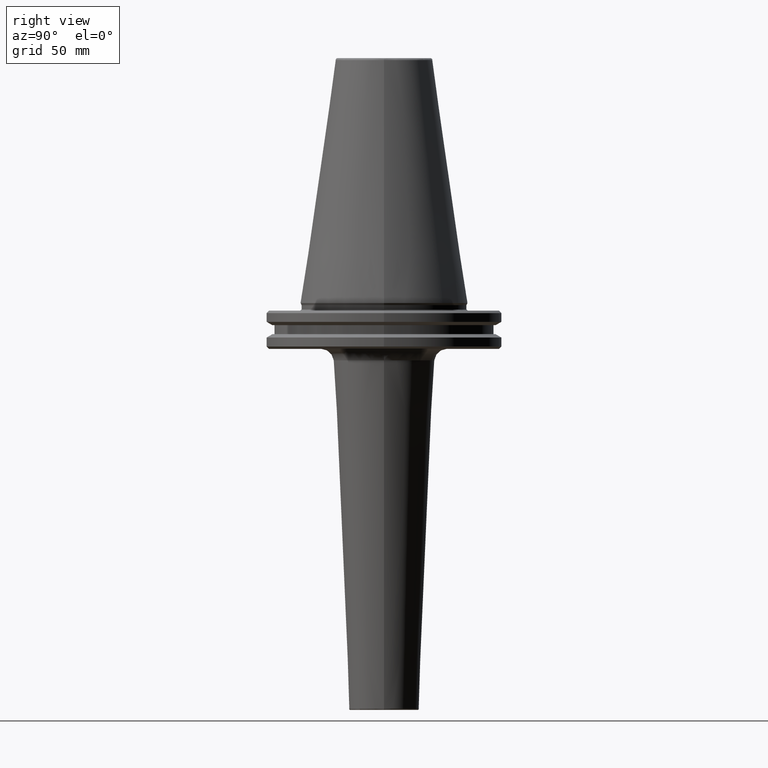
[diagram: clean part render]
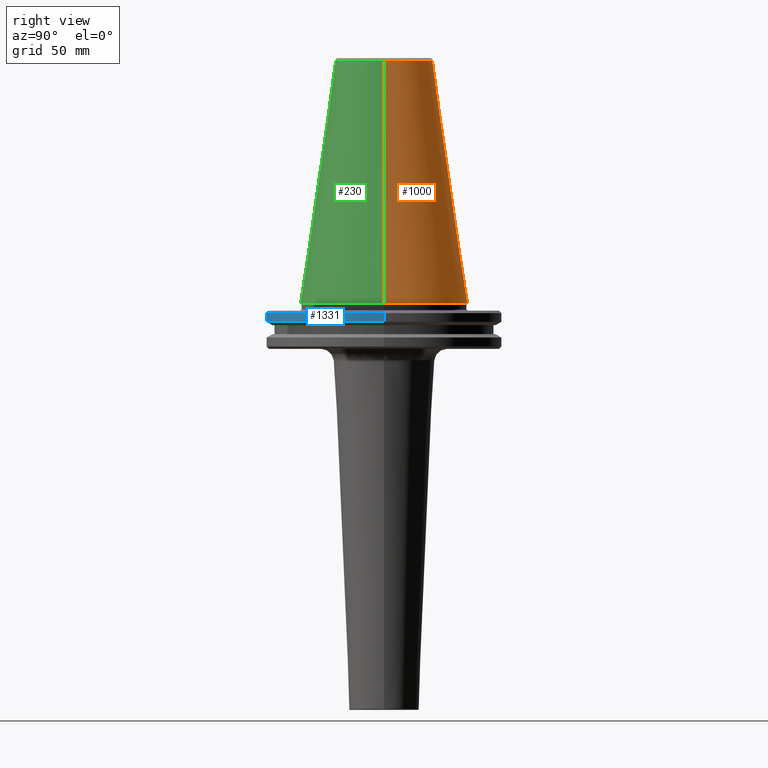
[diagram: same view with three faces highlighted in distinct colors, each labeled with its STEP entity id]
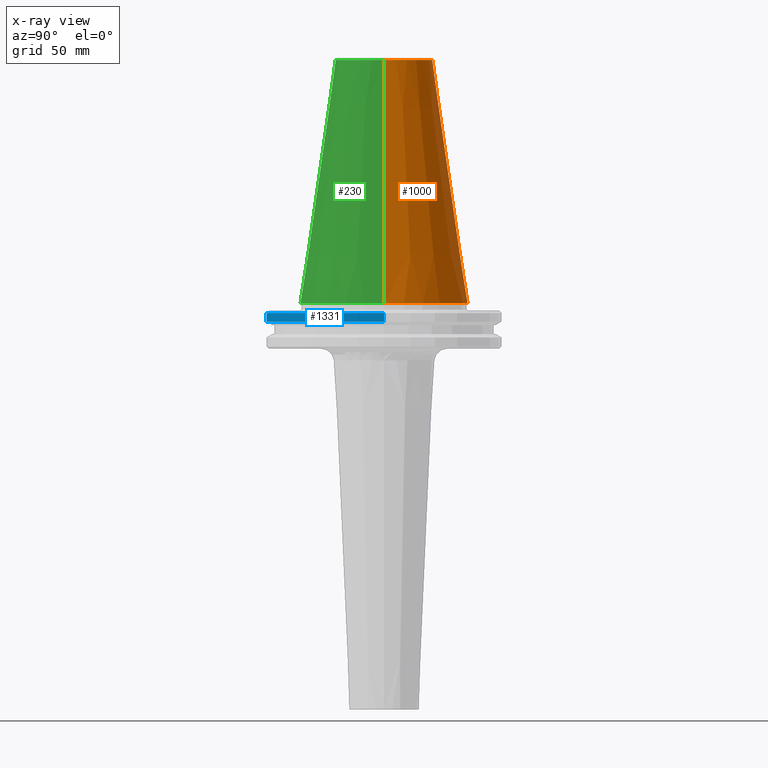
[diagram: x-ray of the same camera — body ghosted, the three highlighted faces saturated]
A machine part, right view with three faces highlighted in distinct colors.
The next image is the same camera in x-ray (body ghosted, the three faces saturated) — at least one of them is partly hidden behind the body in this view.
Their STEP definitions:

[orange] entity #1000 — the highlighted conical surface has half-angle 8.297 deg.
#4 = ORIENTED_EDGE ( 'NONE', *, *, #661, .T. ) ;
#29 = CARTESIAN_POINT ( 'NONE',  ( 20.21110778703758000, 3.376112895941951000E-015, 100.8943082272673000 ) ) ;
#94 = VERTEX_POINT ( 'NONE', #367 ) ;
#124 = CARTESIAN_POINT ( 'NONE',  ( -34.92500000000000400, 4.277078946022131700E-015, 0.0000000000000000000 ) ) ;
#266 = VERTEX_POINT ( 'NONE', #124 ) ;
#367 = CARTESIAN_POINT ( 'NONE',  ( 34.92500000000000400, 0.0000000000000000000, 0.0000000000000000000 ) ) ;
#403 = DIRECTION ( 'NONE',  ( -0.0000000000000000000, -0.0000000000000000000, 1.000000000000000000 ) ) ;
#409 = CARTESIAN_POINT ( 'NONE',  ( 0.0000000000000000000, 0.0000000000000000000, 0.0000000000000000000 ) ) ;
#420 = CARTESIAN_POINT ( 'NONE',  ( -34.92499999999999700, 0.0000000000000000000, -1.387778780781445700E-014 ) ) ;
#427 = DIRECTION ( 'NONE',  ( -0.1443082272673069400, 0.0000000000000000000, -0.9895327864921743500 ) ) ;
#449 = DIRECTION ( 'NONE',  ( 0.1443082272673069400, 1.767266086135362400E-017, -0.9895327864921743500 ) ) ;
#454 = CARTESIAN_POINT ( 'NONE',  ( 34.92499999999999700, 4.277078946022130900E-015, -1.387778780781445700E-014 ) ) ;
#456 = DIRECTION ( 'NONE',  ( -1.000000000000000000, 0.0000000000000000000, 0.0000000000000000000 ) ) ;
#463 = DIRECTION ( 'NONE',  ( 0.0000000000000000000, 0.0000000000000000000, -1.000000000000000000 ) ) ;
#471 = CARTESIAN_POINT ( 'NONE',  ( 0.0000000000000000000, 0.0000000000000000000, 100.8943082272673000 ) ) ;
#477 = DIRECTION ( 'NONE',  ( -1.000000000000000000, 0.0000000000000000000, 0.0000000000000000000 ) ) ;
#497 = EDGE_LOOP ( 'NONE', ( #4, #630, #649, #706 ) ) ;
#630 = ORIENTED_EDGE ( 'NONE', *, *, #686, .T. ) ;
#649 = ORIENTED_EDGE ( 'NONE', *, *, #695, .T. ) ;
#661 = EDGE_CURVE ( 'NONE', #1091, #1342, #1266, .T. ) ;
#686 = EDGE_CURVE ( 'NONE', #1342, #94, #1245, .T. ) ;
#695 = EDGE_CURVE ( 'NONE', #94, #266, #1242, .T. ) ;
#705 = EDGE_CURVE ( 'NONE', #1091, #266, #1247, .T. ) ;
#706 = ORIENTED_EDGE ( 'NONE', *, *, #705, .F. ) ;
#714 = AXIS2_PLACEMENT_3D ( 'NONE', #1362, #1398, #1315 ) ;
#956 = CARTESIAN_POINT ( 'NONE',  ( -20.21110778703758000, 0.0000000000000000000, 100.8943082272673000 ) ) ;
#983 = CONICAL_SURFACE ( 'NONE', #714, 34.92499999999999700, 0.1448138465474189400 ) ;
#1000 = ADVANCED_FACE ( 'NONE', ( #1022 ), #983, .T. ) ;
#1022 = FACE_OUTER_BOUND ( 'NONE', #497, .T. ) ;
#1091 = VERTEX_POINT ( 'NONE', #956 ) ;
#1228 = VECTOR ( 'NONE', #427, 1000.000000000000000 ) ;
#1232 = VECTOR ( 'NONE', #449, 1000.000000000000000 ) ;
#1238 = AXIS2_PLACEMENT_3D ( 'NONE', #409, #403, #477 ) ;
#1242 = CIRCLE ( 'NONE', #1238, 34.92499999999999700 ) ;
#1245 = LINE ( 'NONE', #454, #1232 ) ;
#1247 = LINE ( 'NONE', #420, #1228 ) ;
#1266 = CIRCLE ( 'NONE', #1474, 20.21110778703758000 ) ;
#1315 = DIRECTION ( 'NONE',  ( -1.000000000000000000, 0.0000000000000000000, 0.0000000000000000000 ) ) ;
#1342 = VERTEX_POINT ( 'NONE', #29 ) ;
#1362 = CARTESIAN_POINT ( 'NONE',  ( 0.0000000000000000000, 0.0000000000000000000, -1.387778780781445700E-014 ) ) ;
#1398 = DIRECTION ( 'NONE',  ( 0.0000000000000000000, 0.0000000000000000000, -1.000000000000000000 ) ) ;
#1474 = AXIS2_PLACEMENT_3D ( 'NONE', #471, #463, #456 ) ;

[blue] entity #1331 — the highlighted cylindrical surface (partial cylindrical patch) has radius 48.75 mm, axis along (0, 0, 1).
#21 = AXIS2_PLACEMENT_3D ( 'NONE', #151, #140, #139 ) ;
#56 = CARTESIAN_POINT ( 'NONE',  ( -48.74999999999989300, 0.0000000000000000000, -4.199999999999870500 ) ) ;
#60 = DIRECTION ( 'NONE',  ( 0.0000000000000000000, 0.0000000000000000000, 1.000000000000000000 ) ) ;
#64 = CARTESIAN_POINT ( 'NONE',  ( 0.0000000000000000000, 0.0000000000000000000, 113.5216080541959500 ) ) ;
#96 = DIRECTION ( 'NONE',  ( 1.000000000000000000, 0.0000000000000000000, 0.0000000000000000000 ) ) ;
#123 = DIRECTION ( 'NONE',  ( 1.000000000000000000, 0.0000000000000000000, 0.0000000000000000000 ) ) ;
#128 = DIRECTION ( 'NONE',  ( 0.0000000000000000000, 0.0000000000000000000, 1.000000000000000000 ) ) ;
#131 = CARTESIAN_POINT ( 'NONE',  ( 0.0000000000000000000, 0.0000000000000000000, -7.852404735808352000 ) ) ;
#139 = DIRECTION ( 'NONE',  ( -1.000000000000000000, 0.0000000000000000000, 0.0000000000000000000 ) ) ;
#140 = DIRECTION ( 'NONE',  ( -0.0000000000000000000, -0.0000000000000000000, -1.000000000000000000 ) ) ;
#151 = CARTESIAN_POINT ( 'NONE',  ( 0.0000000000000000000, 0.0000000000000000000, -4.199999999999870500 ) ) ;
#191 = VERTEX_POINT ( 'NONE', #635 ) ;
#202 = AXIS2_PLACEMENT_3D ( 'NONE', #131, #128, #123 ) ;
#224 = AXIS2_PLACEMENT_3D ( 'NONE', #64, #60, #96 ) ;
#421 = ORIENTED_EDGE ( 'NONE', *, *, #1079, .F. ) ;
#462 = ORIENTED_EDGE ( 'NONE', *, *, #1150, .T. ) ;
#480 = EDGE_LOOP ( 'NONE', ( #421, #523, #1114, #462 ) ) ;
#523 = ORIENTED_EDGE ( 'NONE', *, *, #929, .T. ) ;
#557 = DIRECTION ( 'NONE',  ( 0.0000000000000000000, 0.0000000000000000000, 1.000000000000000000 ) ) ;
#558 = LINE ( 'NONE', #1001, #920 ) ;
#582 = EDGE_CURVE ( 'NONE', #1363, #191, #1380, .T. ) ;
#635 = CARTESIAN_POINT ( 'NONE',  ( 48.74999999999989300, 5.970153145843333000E-015, -4.199999999999870500 ) ) ;
#660 = CARTESIAN_POINT ( 'NONE',  ( -48.75000000000000000, 5.970153145843347100E-015, -7.852404735808352000 ) ) ;
#735 = CYLINDRICAL_SURFACE ( 'NONE', #224, 48.75000000000000000 ) ;
#775 = FACE_OUTER_BOUND ( 'NONE', #480, .T. ) ;
#875 = VERTEX_POINT ( 'NONE', #660 ) ;
#885 = CIRCLE ( 'NONE', #21, 48.75000000000018500 ) ;
#920 = VECTOR ( 'NONE', #1031, 1000.000000000000000 ) ;
#929 = EDGE_CURVE ( 'NONE', #875, #1363, #1064, .T. ) ;
#1001 = CARTESIAN_POINT ( 'NONE',  ( -48.75000000000000000, 5.970153145843347100E-015, 113.5216080541959500 ) ) ;
#1031 = DIRECTION ( 'NONE',  ( 0.0000000000000000000, 0.0000000000000000000, 1.000000000000000000 ) ) ;
#1064 = CIRCLE ( 'NONE', #202, 48.75000000000000000 ) ;
#1079 = EDGE_CURVE ( 'NONE', #875, #1504, #558, .T. ) ;
#1111 = CARTESIAN_POINT ( 'NONE',  ( 48.75000000000000000, 0.0000000000000000000, -7.852404735808352000 ) ) ;
#1114 = ORIENTED_EDGE ( 'NONE', *, *, #582, .T. ) ;
#1150 = EDGE_CURVE ( 'NONE', #191, #1504, #885, .T. ) ;
#1157 = CARTESIAN_POINT ( 'NONE',  ( 48.75000000000000000, 0.0000000000000000000, 113.5216080541959500 ) ) ;
#1314 = VECTOR ( 'NONE', #557, 1000.000000000000000 ) ;
#1331 = ADVANCED_FACE ( 'NONE', ( #775 ), #735, .T. ) ;
#1363 = VERTEX_POINT ( 'NONE', #1111 ) ;
#1380 = LINE ( 'NONE', #1157, #1314 ) ;
#1504 = VERTEX_POINT ( 'NONE', #56 ) ;

[green] entity #230 — the highlighted conical surface has half-angle 8.297 deg.
#29 = CARTESIAN_POINT ( 'NONE',  ( 20.21110778703758000, 3.376112895941951000E-015, 100.8943082272673000 ) ) ;
#34 = DIRECTION ( 'NONE',  ( -1.000000000000000000, 0.0000000000000000000, 0.0000000000000000000 ) ) ;
#81 = EDGE_LOOP ( 'NONE', ( #1440, #691, #897, #1414 ) ) ;
#94 = VERTEX_POINT ( 'NONE', #367 ) ;
#124 = CARTESIAN_POINT ( 'NONE',  ( -34.92500000000000400, 4.277078946022131700E-015, 0.0000000000000000000 ) ) ;
#176 = AXIS2_PLACEMENT_3D ( 'NONE', #1427, #1425, #1422 ) ;
#200 = DIRECTION ( 'NONE',  ( 0.0000000000000000000, 0.0000000000000000000, -1.000000000000000000 ) ) ;
#230 = ADVANCED_FACE ( 'NONE', ( #1507 ), #1482, .T. ) ;
#244 = CARTESIAN_POINT ( 'NONE',  ( 0.0000000000000000000, 0.0000000000000000000, -1.387778780781445700E-014 ) ) ;
#265 = AXIS2_PLACEMENT_3D ( 'NONE', #244, #200, #34 ) ;
#266 = VERTEX_POINT ( 'NONE', #124 ) ;
#367 = CARTESIAN_POINT ( 'NONE',  ( 34.92500000000000400, 0.0000000000000000000, 0.0000000000000000000 ) ) ;
#420 = CARTESIAN_POINT ( 'NONE',  ( -34.92499999999999700, 0.0000000000000000000, -1.387778780781445700E-014 ) ) ;
#427 = DIRECTION ( 'NONE',  ( -0.1443082272673069400, 0.0000000000000000000, -0.9895327864921743500 ) ) ;
#438 = EDGE_CURVE ( 'NONE', #1342, #1091, #1478, .T. ) ;
#449 = DIRECTION ( 'NONE',  ( 0.1443082272673069400, 1.767266086135362400E-017, -0.9895327864921743500 ) ) ;
#454 = CARTESIAN_POINT ( 'NONE',  ( 34.92499999999999700, 4.277078946022130900E-015, -1.387778780781445700E-014 ) ) ;
#686 = EDGE_CURVE ( 'NONE', #1342, #94, #1245, .T. ) ;
#691 = ORIENTED_EDGE ( 'NONE', *, *, #438, .T. ) ;
#705 = EDGE_CURVE ( 'NONE', #1091, #266, #1247, .T. ) ;
#799 = EDGE_CURVE ( 'NONE', #266, #94, #1171, .T. ) ;
#854 = DIRECTION ( 'NONE',  ( -1.000000000000000000, 0.0000000000000000000, 0.0000000000000000000 ) ) ;
#861 = DIRECTION ( 'NONE',  ( -0.0000000000000000000, -0.0000000000000000000, 1.000000000000000000 ) ) ;
#867 = CARTESIAN_POINT ( 'NONE',  ( 0.0000000000000000000, 0.0000000000000000000, 0.0000000000000000000 ) ) ;
#897 = ORIENTED_EDGE ( 'NONE', *, *, #705, .T. ) ;
#956 = CARTESIAN_POINT ( 'NONE',  ( -20.21110778703758000, 0.0000000000000000000, 100.8943082272673000 ) ) ;
#986 = AXIS2_PLACEMENT_3D ( 'NONE', #867, #861, #854 ) ;
#1091 = VERTEX_POINT ( 'NONE', #956 ) ;
#1171 = CIRCLE ( 'NONE', #986, 34.92499999999999700 ) ;
#1228 = VECTOR ( 'NONE', #427, 1000.000000000000000 ) ;
#1232 = VECTOR ( 'NONE', #449, 1000.000000000000000 ) ;
#1245 = LINE ( 'NONE', #454, #1232 ) ;
#1247 = LINE ( 'NONE', #420, #1228 ) ;
#1342 = VERTEX_POINT ( 'NONE', #29 ) ;
#1414 = ORIENTED_EDGE ( 'NONE', *, *, #799, .T. ) ;
#1422 = DIRECTION ( 'NONE',  ( -1.000000000000000000, 0.0000000000000000000, 0.0000000000000000000 ) ) ;
#1425 = DIRECTION ( 'NONE',  ( 0.0000000000000000000, 0.0000000000000000000, -1.000000000000000000 ) ) ;
#1427 = CARTESIAN_POINT ( 'NONE',  ( 0.0000000000000000000, 0.0000000000000000000, 100.8943082272673000 ) ) ;
#1440 = ORIENTED_EDGE ( 'NONE', *, *, #686, .F. ) ;
#1478 = CIRCLE ( 'NONE', #176, 20.21110778703758000 ) ;
#1482 = CONICAL_SURFACE ( 'NONE', #265, 34.92499999999999700, 0.1448138465474189400 ) ;
#1507 = FACE_OUTER_BOUND ( 'NONE', #81, .T. ) ;